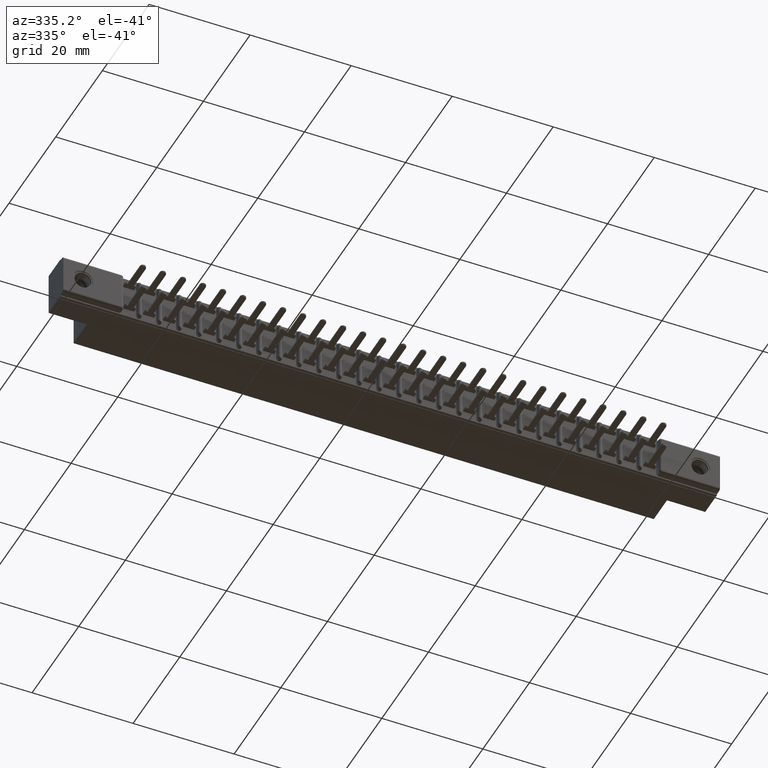
[diagram: clean part render]
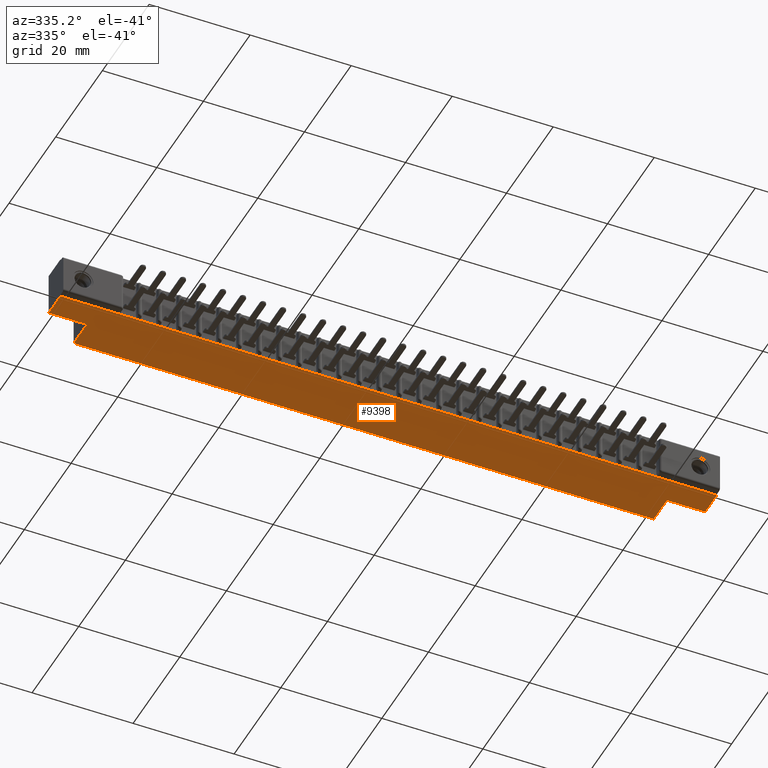
[diagram: same view with one face highlighted and labeled with its STEP entity id]
A machine part, auxiliary view. The second image highlights one B-rep face of the part: STEP entity #9398.
In plain terms, the highlighted planar face has unit normal (0, 0, 1).
Its self-contained STEP definition (entity closure, byte-faithful):
#30 = ORIENTED_EDGE ( 'NONE', *, *, #22378, .T. ) ;
#1091 = EDGE_LOOP ( 'NONE', ( #30, #22541, #15374, #21743, #5136, #21735, #4583, #8389 ) ) ;
#1275 = CARTESIAN_POINT ( 'NONE',  ( 0.0000000000000000000, 0.4729999999999999760, -0.3430000000000000271 ) ) ;
#1374 = VERTEX_POINT ( 'NONE', #24454 ) ;
#1855 = DIRECTION ( 'NONE',  ( -0.0000000000000000000, 1.000000000000000000, -0.0000000000000000000 ) ) ;
#2645 = DIRECTION ( 'NONE',  ( -1.000000000000000000, 0.0000000000000000000, 0.0000000000000000000 ) ) ;
#2712 = CARTESIAN_POINT ( 'NONE',  ( 0.2979999999999998761, 0.2499999999999999722, -0.3430000000000000271 ) ) ;
#3635 = VERTEX_POINT ( 'NONE', #15758 ) ;
#4403 = VECTOR ( 'NONE', #26604, 39.37007874015748143 ) ;
#4583 = ORIENTED_EDGE ( 'NONE', *, *, #7536, .F. ) ;
#4941 = VECTOR ( 'NONE', #19059, 39.37007874015748143 ) ;
#5136 = ORIENTED_EDGE ( 'NONE', *, *, #19575, .T. ) ;
#5810 = CARTESIAN_POINT ( 'NONE',  ( 4.820000000000000284, 0.2499999999999999722, -0.3430000000000000271 ) ) ;
#5958 = PLANE ( 'NONE',  #14026 ) ;
#6959 = VERTEX_POINT ( 'NONE', #17756 ) ;
#7157 = VECTOR ( 'NONE', #18668, 39.37007874015748143 ) ;
#7536 = EDGE_CURVE ( 'NONE', #8585, #16641, #24580, .T. ) ;
#8389 = ORIENTED_EDGE ( 'NONE', *, *, #16861, .F. ) ;
#8585 = VERTEX_POINT ( 'NONE', #10813 ) ;
#9398 = ADVANCED_FACE ( 'NONE', ( #16262 ), #5958, .F. ) ;
#9763 = VECTOR ( 'NONE', #17034, 39.37007874015748143 ) ;
#10465 = CARTESIAN_POINT ( 'NONE',  ( 5.118000000000000327, 0.05099999999999999672, -0.3430000000000000271 ) ) ;
#10732 = LINE ( 'NONE', #19360, #9763 ) ;
#10813 = CARTESIAN_POINT ( 'NONE',  ( 4.820000000000000284, 0.2499999999999999722, -0.3430000000000000271 ) ) ;
#11294 = VERTEX_POINT ( 'NONE', #10465 ) ;
#11685 = DIRECTION ( 'NONE',  ( 1.000000000000000000, 0.0000000000000000000, 0.0000000000000000000 ) ) ;
#12895 = VECTOR ( 'NONE', #24266, 39.37007874015748143 ) ;
#14007 = CARTESIAN_POINT ( 'NONE',  ( 0.0000000000000000000, 0.2499999999999999722, -0.3430000000000000271 ) ) ;
#14026 = AXIS2_PLACEMENT_3D ( 'NONE', #14332, #24480, #18048 ) ;
#14332 = CARTESIAN_POINT ( 'NONE',  ( 0.0000000000000000000, 0.4729999999999999760, -0.3430000000000000271 ) ) ;
#15374 = ORIENTED_EDGE ( 'NONE', *, *, #19791, .F. ) ;
#15640 = CARTESIAN_POINT ( 'NONE',  ( 5.118000000000000327, 0.4729999999999999760, -0.3430000000000000271 ) ) ;
#15758 = CARTESIAN_POINT ( 'NONE',  ( 0.0000000000000000000, 0.05099999999999999672, -0.3430000000000000271 ) ) ;
#15804 = LINE ( 'NONE', #19628, #20245 ) ;
#15913 = LINE ( 'NONE', #15640, #12895 ) ;
#16262 = FACE_OUTER_BOUND ( 'NONE', #1091, .T. ) ;
#16616 = VERTEX_POINT ( 'NONE', #19750 ) ;
#16641 = VERTEX_POINT ( 'NONE', #21276 ) ;
#16861 = EDGE_CURVE ( 'NONE', #6959, #8585, #24420, .T. ) ;
#16989 = VECTOR ( 'NONE', #1855, 39.37007874015748143 ) ;
#17034 = DIRECTION ( 'NONE',  ( -0.0000000000000000000, 1.000000000000000000, -0.0000000000000000000 ) ) ;
#17542 = VERTEX_POINT ( 'NONE', #2712 ) ;
#17756 = CARTESIAN_POINT ( 'NONE',  ( 5.118000000000000327, 0.2499999999999999722, -0.3430000000000000271 ) ) ;
#18048 = DIRECTION ( 'NONE',  ( 1.000000000000000000, 0.0000000000000000000, -0.0000000000000000000 ) ) ;
#18668 = DIRECTION ( 'NONE',  ( -0.0000000000000000000, -1.000000000000000000, -0.0000000000000000000 ) ) ;
#19059 = DIRECTION ( 'NONE',  ( -1.000000000000000000, -0.0000000000000000000, -0.0000000000000000000 ) ) ;
#19360 = CARTESIAN_POINT ( 'NONE',  ( 0.2979999999999998761, 0.2499999999999999722, -0.3430000000000000271 ) ) ;
#19575 = EDGE_CURVE ( 'NONE', #17542, #16616, #10732, .T. ) ;
#19628 = CARTESIAN_POINT ( 'NONE',  ( 0.4729999999999998650, 0.05099999999999999672, -0.3430000000000001381 ) ) ;
#19750 = CARTESIAN_POINT ( 'NONE',  ( 0.2979999999999998761, 0.4729999999999999760, -0.3430000000000000271 ) ) ;
#19782 = EDGE_CURVE ( 'NONE', #3635, #11294, #15804, .T. ) ;
#19791 = EDGE_CURVE ( 'NONE', #1374, #3635, #20045, .T. ) ;
#20045 = LINE ( 'NONE', #1275, #7157 ) ;
#20245 = VECTOR ( 'NONE', #11685, 39.37007874015748143 ) ;
#20786 = EDGE_CURVE ( 'NONE', #16641, #16616, #25361, .T. ) ;
#21276 = CARTESIAN_POINT ( 'NONE',  ( 4.820000000000000284, 0.4729999999999999760, -0.3430000000000000271 ) ) ;
#21413 = CARTESIAN_POINT ( 'NONE',  ( 0.0000000000000000000, 0.2499999999999999722, -0.3430000000000000271 ) ) ;
#21735 = ORIENTED_EDGE ( 'NONE', *, *, #20786, .F. ) ;
#21743 = ORIENTED_EDGE ( 'NONE', *, *, #23438, .F. ) ;
#22378 = EDGE_CURVE ( 'NONE', #6959, #11294, #15913, .T. ) ;
#22541 = ORIENTED_EDGE ( 'NONE', *, *, #19782, .F. ) ;
#23438 = EDGE_CURVE ( 'NONE', #17542, #1374, #25906, .T. ) ;
#23443 = VECTOR ( 'NONE', #2645, 39.37007874015748143 ) ;
#23587 = CARTESIAN_POINT ( 'NONE',  ( 0.0000000000000000000, 0.4729999999999999760, -0.3430000000000000271 ) ) ;
#24266 = DIRECTION ( 'NONE',  ( -0.0000000000000000000, -1.000000000000000000, -0.0000000000000000000 ) ) ;
#24420 = LINE ( 'NONE', #14007, #4403 ) ;
#24454 = CARTESIAN_POINT ( 'NONE',  ( 0.0000000000000000000, 0.2499999999999999722, -0.3430000000000000271 ) ) ;
#24480 = DIRECTION ( 'NONE',  ( 0.0000000000000000000, 0.0000000000000000000, 1.000000000000000000 ) ) ;
#24580 = LINE ( 'NONE', #5810, #16989 ) ;
#25361 = LINE ( 'NONE', #23587, #4941 ) ;
#25906 = LINE ( 'NONE', #21413, #23443 ) ;
#26604 = DIRECTION ( 'NONE',  ( -1.000000000000000000, 0.0000000000000000000, 0.0000000000000000000 ) ) ;